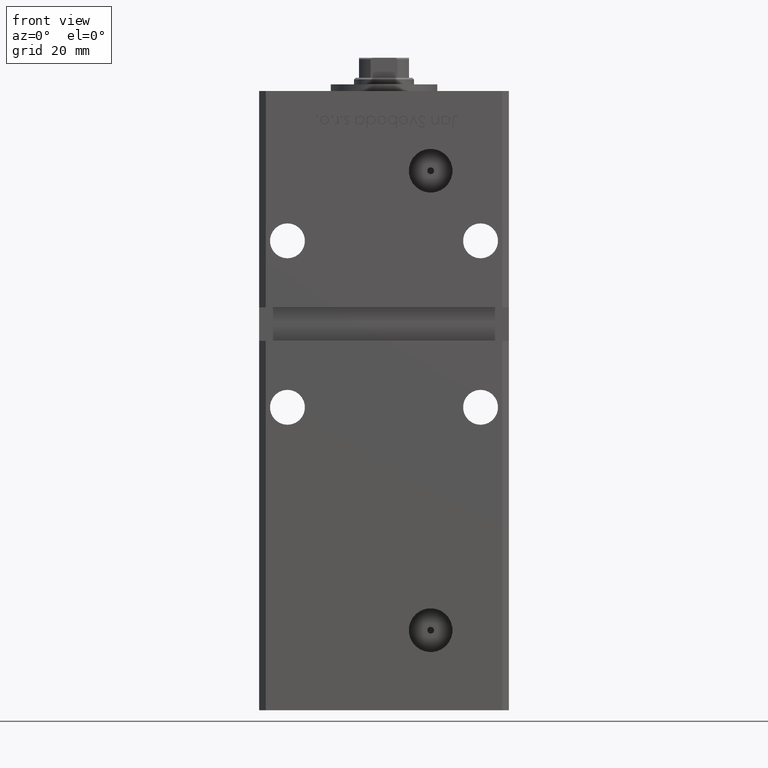
[diagram: clean part render]
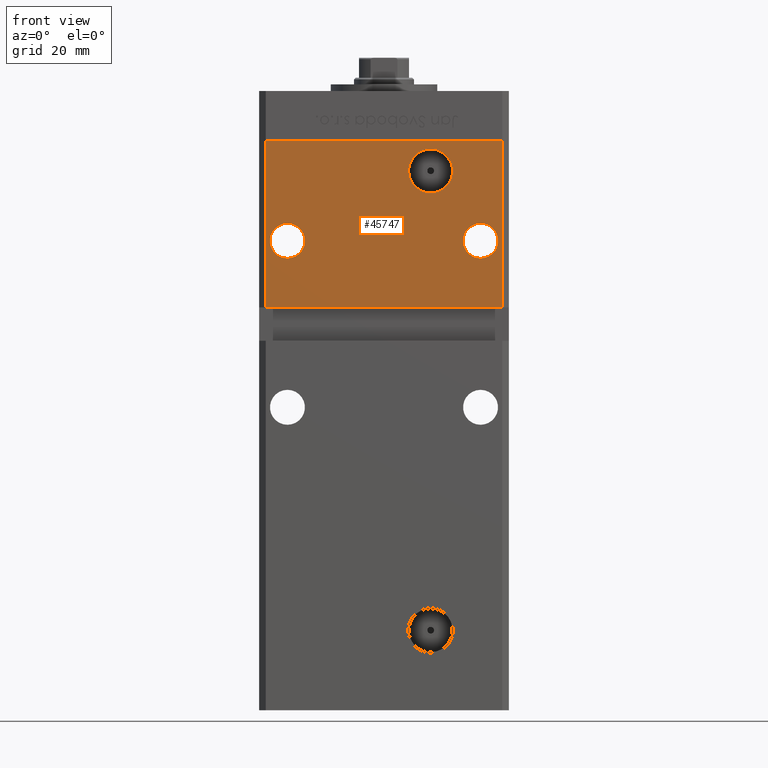
[diagram: same view with one face highlighted and labeled with its STEP entity id]
A machine part, front view. The second image highlights one B-rep face of the part: STEP entity #45747.
In plain terms, the highlighted planar face has unit normal (0, 1, 0).
Its self-contained STEP definition (entity closure, byte-faithful):
#530 = EDGE_CURVE ( 'NONE', #15272, #50011, #24255, .T. ) ;
#568 = CARTESIAN_POINT ( 'NONE',  ( -35.49999999999999289, -32.50000000000000000, 106.0000000000000000 ) ) ;
#575 = CARTESIAN_POINT ( 'NONE',  ( 35.49999999999999289, -32.50000000000000000, 106.0000000000000000 ) ) ;
#596 = DIRECTION ( 'NONE',  ( -0.000000000000000000, 1.000000000000000000, -0.000000000000000000 ) ) ;
#971 = DIRECTION ( 'NONE',  ( 0.000000000000000000, -0.000000000000000000, 1.000000000000000000 ) ) ;
#1132 = VECTOR ( 'NONE', #47166, 1000.000000000000000 ) ;
#1315 = CIRCLE ( 'NONE', #43375, 6.580000000000002736 ) ;
#1987 = CARTESIAN_POINT ( 'NONE',  ( -28.99999999999999645, -32.50000000000000000, 126.0000000000000000 ) ) ;
#2259 = DIRECTION ( 'NONE',  ( 0.000000000000000000, 0.000000000000000000, 1.000000000000000000 ) ) ;
#2967 = CIRCLE ( 'NONE', #39875, 6.580000000000002736 ) ;
#3526 = EDGE_CURVE ( 'NONE', #43748, #44452, #39099, .T. ) ;
#3983 = VERTEX_POINT ( 'NONE', #17683 ) ;
#4096 = DIRECTION ( 'NONE',  ( 0.000000000000000000, 0.000000000000000000, -1.000000000000000000 ) ) ;
#4710 = AXIS2_PLACEMENT_3D ( 'NONE', #19220, #47720, #35623 ) ;
#5557 = LINE ( 'NONE', #26538, #48878 ) ;
#5803 = PLANE ( 'NONE',  #29748 ) ;
#5822 = DIRECTION ( 'NONE',  ( -0.000000000000000000, 1.000000000000000000, -0.000000000000000000 ) ) ;
#7865 = DIRECTION ( 'NONE',  ( -0.000000000000000000, -0.000000000000000000, -1.000000000000000000 ) ) ;
#7887 = EDGE_CURVE ( 'NONE', #11524, #3983, #2967, .T. ) ;
#8435 = LINE ( 'NONE', #37183, #27192 ) ;
#9624 = EDGE_CURVE ( 'NONE', #3983, #11524, #1315, .T. ) ;
#9641 = EDGE_LOOP ( 'NONE', ( #43085, #34666 ) ) ;
#10043 = ORIENTED_EDGE ( 'NONE', *, *, #53090, .F. ) ;
#11252 = ORIENTED_EDGE ( 'NONE', *, *, #3526, .F. ) ;
#11524 = VERTEX_POINT ( 'NONE', #51933 ) ;
#11620 = CARTESIAN_POINT ( 'NONE',  ( 28.99999999999999645, -32.50000000000000000, 126.0000000000000000 ) ) ;
#14862 = DIRECTION ( 'NONE',  ( 0.000000000000000000, 1.000000000000000000, 0.000000000000000000 ) ) ;
#15272 = VERTEX_POINT ( 'NONE', #15281 ) ;
#15281 = CARTESIAN_POINT ( 'NONE',  ( 28.99999999999999645, -32.50000000000000000, 131.2500000000000000 ) ) ;
#17111 = DIRECTION ( 'NONE',  ( 0.000000000000000000, 1.000000000000000000, 0.000000000000000000 ) ) ;
#17683 = CARTESIAN_POINT ( 'NONE',  ( 13.99999999999997513, -32.50000000000000000, 140.4200000000000443 ) ) ;
#17876 = EDGE_CURVE ( 'NONE', #43748, #48510, #8435, .T. ) ;
#18338 = ORIENTED_EDGE ( 'NONE', *, *, #46215, .F. ) ;
#19220 = CARTESIAN_POINT ( 'NONE',  ( -28.99999999999999645, -32.50000000000000000, 126.0000000000000000 ) ) ;
#21154 = FACE_OUTER_BOUND ( 'NONE', #42720, .T. ) ;
#21269 = CARTESIAN_POINT ( 'NONE',  ( 35.49999999999999289, -32.50000000000000000, 156.0000000000000000 ) ) ;
#21671 = FACE_BOUND ( 'NONE', #9641, .T. ) ;
#22148 = CARTESIAN_POINT ( 'NONE',  ( 28.99999999999999645, -32.50000000000000000, 120.7500000000000000 ) ) ;
#22233 = DIRECTION ( 'NONE',  ( 0.000000000000000000, 0.000000000000000000, -1.000000000000000000 ) ) ;
#22403 = CARTESIAN_POINT ( 'NONE',  ( -28.99999999999999645, -32.50000000000000000, 131.2500000000000000 ) ) ;
#22506 = VERTEX_POINT ( 'NONE', #22403 ) ;
#23763 = EDGE_CURVE ( 'NONE', #36041, #22506, #26593, .T. ) ;
#24023 = AXIS2_PLACEMENT_3D ( 'NONE', #1987, #46879, #2259 ) ;
#24255 = CIRCLE ( 'NONE', #28544, 5.250000000000004441 ) ;
#24921 = DIRECTION ( 'NONE',  ( 0.000000000000000000, 0.000000000000000000, 1.000000000000000000 ) ) ;
#25748 = DIRECTION ( 'NONE',  ( -1.000000000000000000, -0.000000000000000000, -0.000000000000000000 ) ) ;
#26538 = CARTESIAN_POINT ( 'NONE',  ( -37.49999999999999289, -32.50000000000000000, 106.0000000000000000 ) ) ;
#26593 = CIRCLE ( 'NONE', #24023, 5.250000000000004441 ) ;
#26747 = CARTESIAN_POINT ( 'NONE',  ( -35.49999999999999289, -32.50000000000000000, 156.0000000000000000 ) ) ;
#26831 = ORIENTED_EDGE ( 'NONE', *, *, #9624, .T. ) ;
#27192 = VECTOR ( 'NONE', #36660, 1000.000000000000000 ) ;
#28036 = LINE ( 'NONE', #28571, #48607 ) ;
#28088 = EDGE_CURVE ( 'NONE', #50011, #15272, #45609, .T. ) ;
#28476 = AXIS2_PLACEMENT_3D ( 'NONE', #44524, #45322, #24921 ) ;
#28544 = AXIS2_PLACEMENT_3D ( 'NONE', #11620, #14862, #31266 ) ;
#28571 = CARTESIAN_POINT ( 'NONE',  ( 35.49999999999999289, -32.50000000000000000, 156.0000000000000000 ) ) ;
#28881 = EDGE_LOOP ( 'NONE', ( #26831, #51218 ) ) ;
#29748 = AXIS2_PLACEMENT_3D ( 'NONE', #37540, #17111, #971 ) ;
#31266 = DIRECTION ( 'NONE',  ( 0.000000000000000000, 0.000000000000000000, 1.000000000000000000 ) ) ;
#32919 = CARTESIAN_POINT ( 'NONE',  ( -28.99999999999999645, -32.50000000000000000, 120.7500000000000000 ) ) ;
#33776 = FACE_BOUND ( 'NONE', #28881, .T. ) ;
#34666 = ORIENTED_EDGE ( 'NONE', *, *, #28088, .T. ) ;
#35623 = DIRECTION ( 'NONE',  ( 0.000000000000000000, 0.000000000000000000, 1.000000000000000000 ) ) ;
#36041 = VERTEX_POINT ( 'NONE', #32919 ) ;
#36660 = DIRECTION ( 'NONE',  ( -0.000000000000000000, -0.000000000000000000, -1.000000000000000000 ) ) ;
#36810 = EDGE_CURVE ( 'NONE', #22506, #36041, #51915, .T. ) ;
#37183 = CARTESIAN_POINT ( 'NONE',  ( -35.49999999999999289, -32.50000000000000000, 156.0000000000000000 ) ) ;
#37425 = CARTESIAN_POINT ( 'NONE',  ( 13.99999999999997513, -32.50000000000000000, 147.0000000000000568 ) ) ;
#37540 = CARTESIAN_POINT ( 'NONE',  ( -35.49999999999999289, -32.50000000000000000, 156.0000000000000000 ) ) ;
#37967 = EDGE_LOOP ( 'NONE', ( #46020, #44419 ) ) ;
#38060 = FACE_BOUND ( 'NONE', #37967, .T. ) ;
#39099 = LINE ( 'NONE', #26747, #1132 ) ;
#39875 = AXIS2_PLACEMENT_3D ( 'NONE', #37425, #596, #4096 ) ;
#42720 = EDGE_LOOP ( 'NONE', ( #46411, #10043, #18338, #11252 ) ) ;
#43085 = ORIENTED_EDGE ( 'NONE', *, *, #530, .T. ) ;
#43375 = AXIS2_PLACEMENT_3D ( 'NONE', #50723, #5822, #22233 ) ;
#43748 = VERTEX_POINT ( 'NONE', #48024 ) ;
#44419 = ORIENTED_EDGE ( 'NONE', *, *, #23763, .T. ) ;
#44452 = VERTEX_POINT ( 'NONE', #21269 ) ;
#44524 = CARTESIAN_POINT ( 'NONE',  ( 28.99999999999999645, -32.50000000000000000, 126.0000000000000000 ) ) ;
#45322 = DIRECTION ( 'NONE',  ( 0.000000000000000000, 1.000000000000000000, 0.000000000000000000 ) ) ;
#45609 = CIRCLE ( 'NONE', #28476, 5.250000000000004441 ) ;
#45747 = ADVANCED_FACE ( 'NONE', ( #21671, #38060, #21154, #33776 ), #5803, .F. ) ;
#46020 = ORIENTED_EDGE ( 'NONE', *, *, #36810, .T. ) ;
#46215 = EDGE_CURVE ( 'NONE', #44452, #52900, #28036, .T. ) ;
#46411 = ORIENTED_EDGE ( 'NONE', *, *, #17876, .T. ) ;
#46879 = DIRECTION ( 'NONE',  ( 0.000000000000000000, 1.000000000000000000, 0.000000000000000000 ) ) ;
#47166 = DIRECTION ( 'NONE',  ( 1.000000000000000000, 0.000000000000000000, 0.000000000000000000 ) ) ;
#47720 = DIRECTION ( 'NONE',  ( 0.000000000000000000, 1.000000000000000000, 0.000000000000000000 ) ) ;
#48024 = CARTESIAN_POINT ( 'NONE',  ( -35.49999999999999289, -32.50000000000000000, 156.0000000000000000 ) ) ;
#48510 = VERTEX_POINT ( 'NONE', #568 ) ;
#48607 = VECTOR ( 'NONE', #7865, 1000.000000000000000 ) ;
#48878 = VECTOR ( 'NONE', #25748, 1000.000000000000000 ) ;
#50011 = VERTEX_POINT ( 'NONE', #22148 ) ;
#50723 = CARTESIAN_POINT ( 'NONE',  ( 13.99999999999997513, -32.50000000000000000, 147.0000000000000568 ) ) ;
#51218 = ORIENTED_EDGE ( 'NONE', *, *, #7887, .T. ) ;
#51915 = CIRCLE ( 'NONE', #4710, 5.250000000000004441 ) ;
#51933 = CARTESIAN_POINT ( 'NONE',  ( 13.99999999999997513, -32.50000000000000000, 153.5800000000000409 ) ) ;
#52900 = VERTEX_POINT ( 'NONE', #575 ) ;
#53090 = EDGE_CURVE ( 'NONE', #52900, #48510, #5557, .T. ) ;